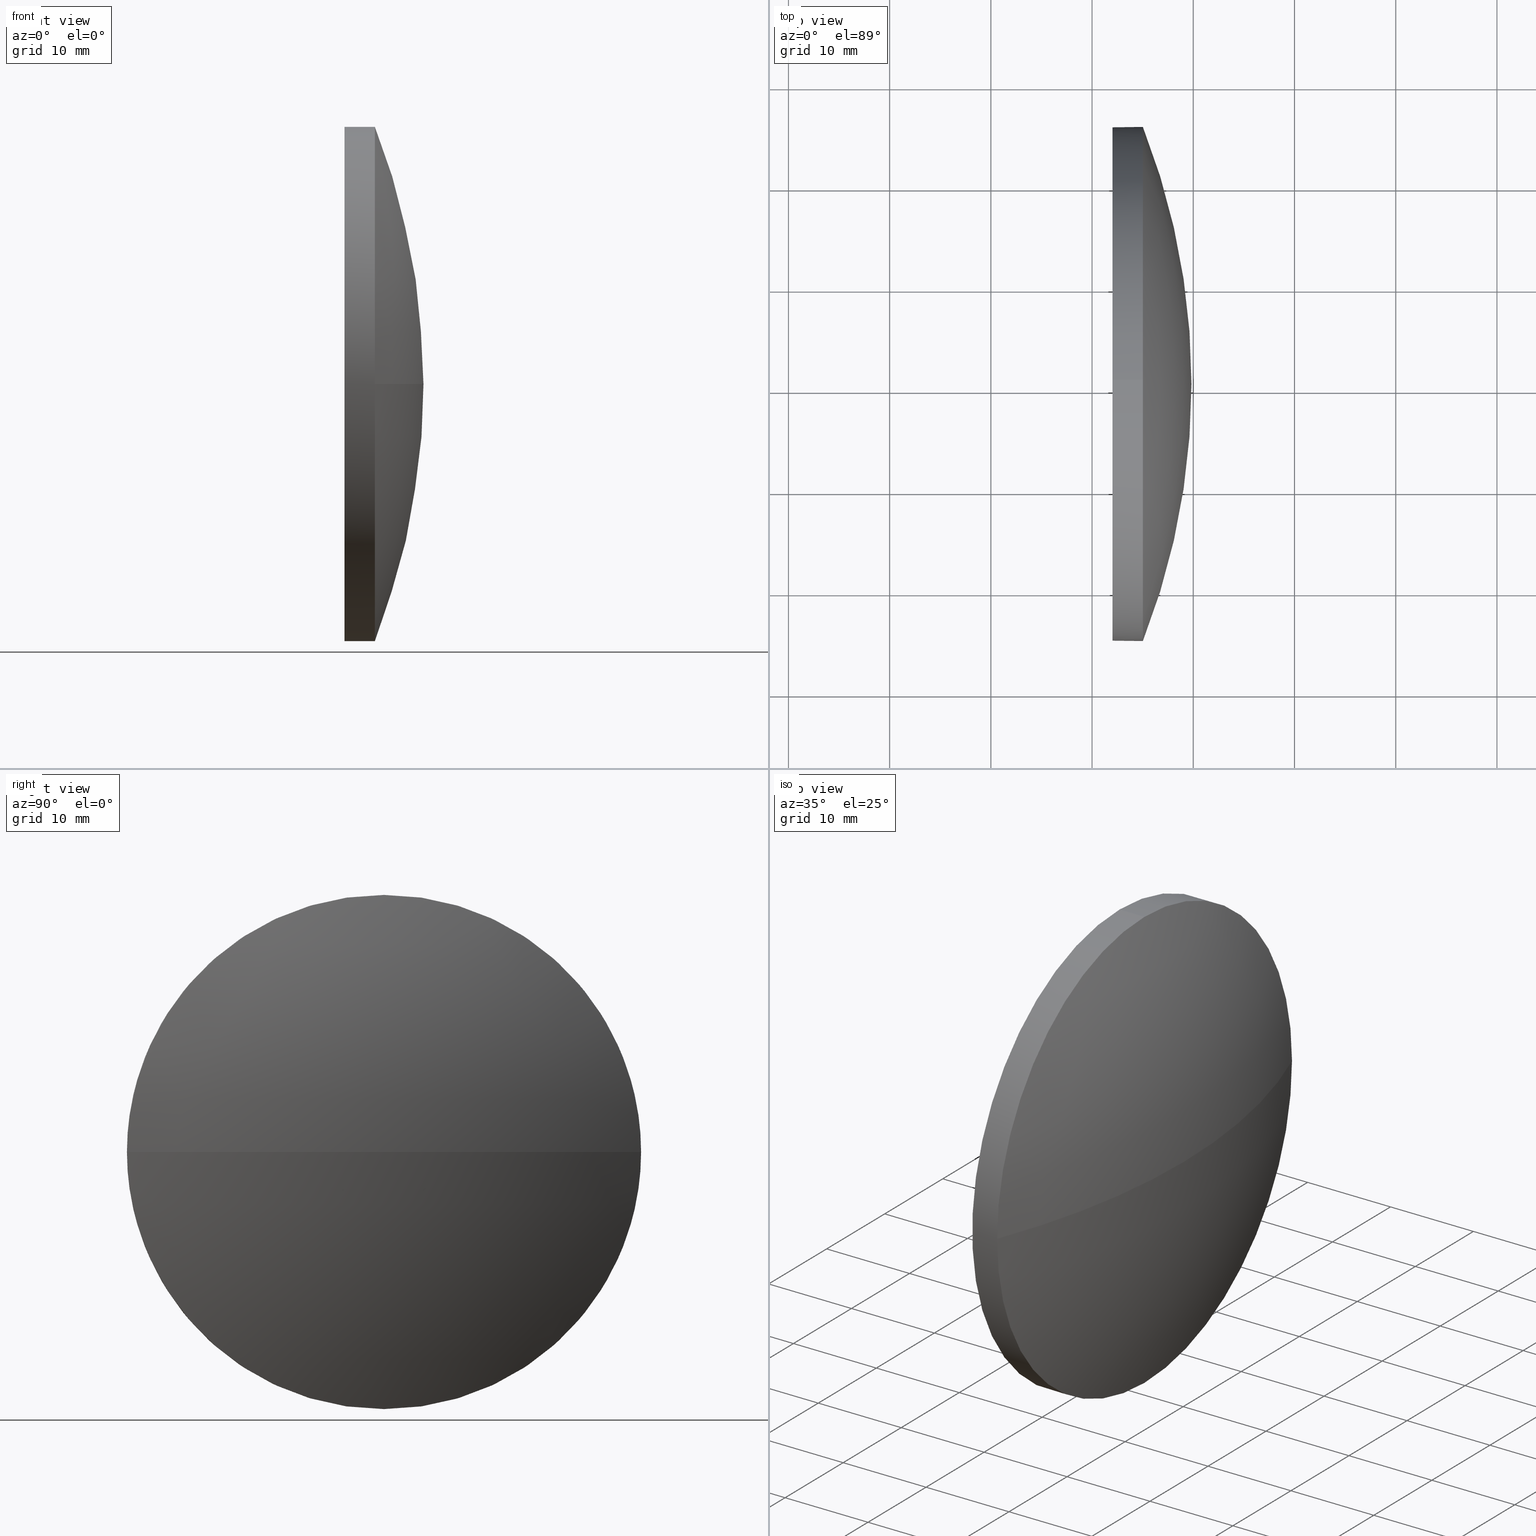
[diagram: canonical four-view strip — front | top / right | iso, engineering-drawing reading convention]
A machine part, canonical four-view strip (front | top / right | iso — engineering-drawing reading convention). The complete STEP part file that produces these views, byte-faithful:
ISO-10303-21;
HEADER;
FILE_DESCRIPTION (( 'STEP AP214' ),
    '1' );
FILE_NAME ('100387.STEP',
    '2019-06-05T01:40:58',
    ( '' ),
    ( '' ),
    'SwSTEP 2.0',
    'SolidWorks 2016',
    '' );
FILE_SCHEMA (( 'AUTOMOTIVE_DESIGN' ));
ENDSEC;

DATA;
#1 = FILL_AREA_STYLE_COLOUR ( '', #73 ) ;
#2 = VERTEX_POINT ( 'NONE', #66 ) ;
#3 = AXIS2_PLACEMENT_3D ( 'NONE', #95, #123, #60 ) ;
#4 = CARTESIAN_POINT ( 'NONE',  ( 0.0000000000000000000, 0.0000000000000000000, 0.0000000000000000000 ) ) ;
#5 = DIRECTION ( 'NONE',  ( 1.000000000000000000, 0.0000000000000000000, 0.0000000000000000000 ) ) ;
#6 = CARTESIAN_POINT ( 'NONE',  ( 220.3307464569769000, 130.4671098528243900, 0.0000000000000000000 ) ) ;
#7 = CARTESIAN_POINT ( 'NONE',  ( 235.0208200792423800, 130.4671098528243900, 0.0000000000000000000 ) ) ;
#8 = EDGE_LOOP ( 'NONE', ( #40, #80 ) ) ;
#9 = CYLINDRICAL_SURFACE ( 'NONE', #105, 25.40000000000000600 ) ;
#10 = DIRECTION ( 'NONE',  ( -1.000000000000000000, -0.0000000000000000000, -0.0000000000000000000 ) ) ;
#11 = VERTEX_POINT ( 'NONE', #132 ) ;
#12 = APPLICATION_PROTOCOL_DEFINITION ( 'draft international standard', 'automotive_design', 1998, #110 ) ;
#13 = COLOUR_RGB ( '',1.000000000000000000, 1.000000000000000000, 1.000000000000000000 ) ;
#14 =( NAMED_UNIT ( * ) PLANE_ANGLE_UNIT ( ) SI_UNIT ( $, .RADIAN. ) );
#15 = UNCERTAINTY_MEASURE_WITH_UNIT (LENGTH_MEASURE( 1.000000000000000100E-005 ), #34, 'distance_accuracy_value', 'NONE');
#16 = VERTEX_POINT ( 'NONE', #63 ) ;
#17 = VECTOR ( 'NONE', #120, 1000.000000000000000 ) ;
#18 = ORIENTED_EDGE ( 'NONE', *, *, #68, .T. ) ;
#19 = CIRCLE ( 'NONE', #182, 25.40000000000000600 ) ;
#20 = EDGE_CURVE ( 'NONE', #57, #2, #157, .T. ) ;
#21 = EDGE_CURVE ( 'NONE', #2, #57, #76, .T. ) ;
#22 = DIRECTION ( 'NONE',  ( 0.0000000000000000000, 1.000000000000000000, 0.0000000000000000000 ) ) ;
#23 = ORIENTED_EDGE ( 'NONE', *, *, #148, .T. ) ;
#24 = CARTESIAN_POINT ( 'NONE',  ( 235.0208200792423800, 130.4671098528243900, 0.0000000000000000000 ) ) ;
#25 = FILL_AREA_STYLE ('',( #125 ) ) ;
#26 = PRESENTATION_LAYER_ASSIGNMENT (  '', '', ( #146 ) ) ;
#27 = ORIENTED_EDGE ( 'NONE', *, *, #61, .F. ) ;
#28 = EDGE_LOOP ( 'NONE', ( #93, #18, #130, #159, #153 ) ) ;
#29 = EDGE_CURVE ( 'NONE', #16, #57, #113, .T. ) ;
#30 =( GEOMETRIC_REPRESENTATION_CONTEXT ( 3 ) GLOBAL_UNCERTAINTY_ASSIGNED_CONTEXT ( ( #47 ) ) GLOBAL_UNIT_ASSIGNED_CONTEXT ( ( #177, #41, #89 ) ) REPRESENTATION_CONTEXT ( 'NONE', 'WORKASPACE' ) );
#31 = DIRECTION ( 'NONE',  ( 1.000000000000000000, 0.0000000000000000000, 0.0000000000000000000 ) ) ;
#32 = CARTESIAN_POINT ( 'NONE',  ( 170.2166534125759400, 130.4671098528243900, 0.0000000000000000000 ) ) ;
#33 = DIRECTION ( 'NONE',  ( 0.0000000000000000000, 1.224646799147353200E-016, -1.000000000000000000 ) ) ;
#34 =( LENGTH_UNIT ( ) NAMED_UNIT ( * ) SI_UNIT ( .MILLI., .METRE. ) );
#35 = VECTOR ( 'NONE', #135, 1000.000000000000000 ) ;
#36 =( NAMED_UNIT ( * ) SI_UNIT ( $, .STERADIAN. ) SOLID_ANGLE_UNIT ( ) );
#37 = PRESENTATION_STYLE_ASSIGNMENT (( #103 ) ) ;
#38 = DIRECTION ( 'NONE',  ( -1.000000000000000000, -0.0000000000000000000, -0.0000000000000000000 ) ) ;
#39 = DIRECTION ( 'NONE',  ( -1.000000000000000000, -0.0000000000000000000, -0.0000000000000000000 ) ) ;
#40 = ORIENTED_EDGE ( 'NONE', *, *, #21, .T. ) ;
#41 =( NAMED_UNIT ( * ) PLANE_ANGLE_UNIT ( ) SI_UNIT ( $, .RADIAN. ) );
#42 = PRESENTATION_STYLE_ASSIGNMENT (( #126 ) ) ;
#43 = DIRECTION ( 'NONE',  ( -1.000000000000000000, -0.0000000000000000000, -0.0000000000000000000 ) ) ;
#44 = CARTESIAN_POINT ( 'NONE',  ( 232.0208200792423800, 130.4671098528243900, 0.0000000000000000000 ) ) ;
#45 = ORIENTED_EDGE ( 'NONE', *, *, #164, .T. ) ;
#46 = SPHERICAL_SURFACE ( 'NONE', #178, 69.60416666666644400 ) ;
#47 = UNCERTAINTY_MEASURE_WITH_UNIT (LENGTH_MEASURE( 1.000000000000000100E-005 ), #177, 'distance_accuracy_value', 'NONE');
#48 = ORIENTED_EDGE ( 'NONE', *, *, #29, .T. ) ;
#49 = CIRCLE ( 'NONE', #115, 69.60416666666644400 ) ;
#50 = SURFACE_SIDE_STYLE ('',( #124 ) ) ;
#51 = MECHANICAL_DESIGN_GEOMETRIC_PRESENTATION_REPRESENTATION (  '', ( #146 ), #30 ) ;
#52 = ADVANCED_FACE ( 'NONE', ( #86 ), #46, .T. ) ;
#53 = ADVANCED_FACE ( 'NONE', ( #160 ), #9, .T. ) ;
#54 = CARTESIAN_POINT ( 'NONE',  ( 239.8208200792423700, 130.4671098528243900, 0.0000000000000000000 ) ) ;
#55 = ORIENTED_EDGE ( 'NONE', *, *, #164, .F. ) ;
#56 = AXIS2_PLACEMENT_3D ( 'NONE', #6, #10, #108 ) ;
#57 = VERTEX_POINT ( 'NONE', #65 ) ;
#58 = PLANE ( 'NONE',  #129 ) ;
#59 = MANIFOLD_SOLID_BREP ( '��ת1', #104 ) ;
#60 = DIRECTION ( 'NONE',  ( 0.0000000000000000000, 0.0000000000000000000, 1.000000000000000000 ) ) ;
#61 = EDGE_CURVE ( 'NONE', #11, #116, #169, .T. ) ;
#62 = ORIENTED_EDGE ( 'NONE', *, *, #117, .F. ) ;
#63 = CARTESIAN_POINT ( 'NONE',  ( 235.0208200792423800, 130.4671098528243900, -25.40000000000000600 ) ) ;
#64 = PRODUCT ( '100387', '100387', '', ( #144 ) ) ;
#65 = CARTESIAN_POINT ( 'NONE',  ( 232.0208200792423800, 130.4671098528243900, -25.40000000000000600 ) ) ;
#66 = CARTESIAN_POINT ( 'NONE',  ( 232.0208200792423800, 130.4671098528243900, 25.40000000000000600 ) ) ;
#67 = PRODUCT_DEFINITION ( 'δ֪', '', #82, #90 ) ;
#68 = EDGE_CURVE ( 'NONE', #16, #11, #92, .T. ) ;
#69 = PRODUCT_RELATED_PRODUCT_CATEGORY ( 'part', '', ( #64 ) ) ;
#70 = DIRECTION ( 'NONE',  ( -1.000000000000000000, -0.0000000000000000000, -0.0000000000000000000 ) ) ;
#71 = DIRECTION ( 'NONE',  ( -0.0000000000000000000, 0.0000000000000000000, -1.000000000000000000 ) ) ;
#72 = EDGE_LOOP ( 'NONE', ( #62, #45, #83, #141 ) ) ;
#73 = COLOUR_RGB ( '',1.000000000000000000, 1.000000000000000000, 1.000000000000000000 ) ;
#74 = DIRECTION ( 'NONE',  ( 0.0000000000000000000, 1.000000000000000000, 1.224646799147353200E-016 ) ) ;
#75 = CARTESIAN_POINT ( 'NONE',  ( 170.2166534125759400, 130.4671098528243900, 0.0000000000000000000 ) ) ;
#76 = CIRCLE ( 'NONE', #174, 25.40000000000000600 ) ;
#77 =( NAMED_UNIT ( * ) PLANE_ANGLE_UNIT ( ) SI_UNIT ( $, .RADIAN. ) );
#78 = SHAPE_DEFINITION_REPRESENTATION ( #172, #183 ) ;
#79 = AXIS2_PLACEMENT_3D ( 'NONE', #7, #43, #152 ) ;
#80 = ORIENTED_EDGE ( 'NONE', *, *, #20, .T. ) ;
#81 = FACE_OUTER_BOUND ( 'NONE', #28, .T. ) ;
#82 = PRODUCT_DEFINITION_FORMATION_WITH_SPECIFIED_SOURCE ( '�κ�', '', #64, .NOT_KNOWN. ) ;
#83 = ORIENTED_EDGE ( 'NONE', *, *, #68, .F. ) ;
#84 = AXIS2_PLACEMENT_3D ( 'NONE', #75, #71, #143 ) ;
#85 = VERTEX_POINT ( 'NONE', #54 ) ;
#86 = FACE_OUTER_BOUND ( 'NONE', #72, .T. ) ;
#87 = CARTESIAN_POINT ( 'NONE',  ( 220.3307464569769000, 130.4671098528243900, 0.0000000000000000000 ) ) ;
#88 = EDGE_LOOP ( 'NONE', ( #55, #175, #171, #27 ) ) ;
#89 =( NAMED_UNIT ( * ) SI_UNIT ( $, .STERADIAN. ) SOLID_ANGLE_UNIT ( ) );
#90 = PRODUCT_DEFINITION_CONTEXT ( 'detailed design', #109, 'design' ) ;
#91 = STYLED_ITEM ( 'NONE', ( #42 ), #183 ) ;
#92 = CIRCLE ( 'NONE', #111, 25.40000000000000600 ) ;
#93 = ORIENTED_EDGE ( 'NONE', *, *, #29, .F. ) ;
#94 =( LENGTH_UNIT ( ) NAMED_UNIT ( * ) SI_UNIT ( .MILLI., .METRE. ) );
#95 = CARTESIAN_POINT ( 'NONE',  ( 235.0208200792423800, 130.4671098528243900, 0.0000000000000000000 ) ) ;
#96 = ADVANCED_FACE ( 'NONE', ( #131 ), #158, .T. ) ;
#97 =( NAMED_UNIT ( * ) SI_UNIT ( $, .STERADIAN. ) SOLID_ANGLE_UNIT ( ) );
#98 = AXIS2_PLACEMENT_3D ( 'NONE', #4, #128, #181 ) ;
#99 = VERTEX_POINT ( 'NONE', #150 ) ;
#100 = CARTESIAN_POINT ( 'NONE',  ( 232.0208200792423800, 130.4671098528243900, 0.0000000000000000000 ) ) ;
#101 = CARTESIAN_POINT ( 'NONE',  ( 232.0208200792423800, 130.4671098528243900, 0.0000000000000000000 ) ) ;
#102 = AXIS2_PLACEMENT_3D ( 'NONE', #100, #39, #114 ) ;
#103 = SURFACE_STYLE_USAGE ( .BOTH. , #137 ) ;
#104 = CLOSED_SHELL ( 'NONE', ( #53, #52, #96, #168, #154 ) ) ;
#105 = AXIS2_PLACEMENT_3D ( 'NONE', #87, #173, #185 ) ;
#106 = DIRECTION ( 'NONE',  ( -0.0000000000000000000, 0.0000000000000000000, 1.000000000000000000 ) ) ;
#107 = CARTESIAN_POINT ( 'NONE',  ( 170.2166534125759400, 130.4671098528243900, 0.0000000000000000000 ) ) ;
#108 = DIRECTION ( 'NONE',  ( 0.0000000000000000000, 0.0000000000000000000, 1.000000000000000000 ) ) ;
#109 = APPLICATION_CONTEXT ( 'automotive_design' ) ;
#110 = APPLICATION_CONTEXT ( 'automotive_design' ) ;
#111 = AXIS2_PLACEMENT_3D ( 'NONE', #24, #70, #166 ) ;
#112 = SURFACE_STYLE_FILL_AREA ( #161 ) ;
#113 = LINE ( 'NONE', #147, #35 ) ;
#114 = DIRECTION ( 'NONE',  ( 0.0000000000000000000, 0.0000000000000000000, 1.000000000000000000 ) ) ;
#115 = AXIS2_PLACEMENT_3D ( 'NONE', #32, #106, #5 ) ;
#116 = VERTEX_POINT ( 'NONE', #140 ) ;
#117 = EDGE_CURVE ( 'NONE', #85, #99, #49, .T. ) ;
#118 = CYLINDRICAL_SURFACE ( 'NONE', #56, 25.40000000000000600 ) ;
#119 = FACE_OUTER_BOUND ( 'NONE', #8, .T. ) ;
#120 = DIRECTION ( 'NONE',  ( -1.000000000000000000, -0.0000000000000000000, -0.0000000000000000000 ) ) ;
#121 = MECHANICAL_DESIGN_GEOMETRIC_PRESENTATION_REPRESENTATION (  '', ( #91 ), #145 ) ;
#122 = CARTESIAN_POINT ( 'NONE',  ( 235.0208200792423800, 130.4671098528243900, 0.0000000000000000000 ) ) ;
#123 = DIRECTION ( 'NONE',  ( -1.000000000000000000, -0.0000000000000000000, -0.0000000000000000000 ) ) ;
#124 = SURFACE_STYLE_FILL_AREA ( #25 ) ;
#125 = FILL_AREA_STYLE_COLOUR ( '', #13 ) ;
#126 = SURFACE_STYLE_USAGE ( .BOTH. , #50 ) ;
#127 = APPLICATION_PROTOCOL_DEFINITION ( 'draft international standard', 'automotive_design', 1998, #109 ) ;
#128 = DIRECTION ( 'NONE',  ( 0.0000000000000000000, 0.0000000000000000000, 1.000000000000000000 ) ) ;
#129 = AXIS2_PLACEMENT_3D ( 'NONE', #44, #31, #151 ) ;
#130 = ORIENTED_EDGE ( 'NONE', *, *, #61, .T. ) ;
#131 = FACE_OUTER_BOUND ( 'NONE', #88, .T. ) ;
#132 = CARTESIAN_POINT ( 'NONE',  ( 235.0208200792423600, 105.0671098528244200, -3.110602869834274900E-015 ) ) ;
#133 = AXIS2_PLACEMENT_3D ( 'NONE', #107, #33, #74 ) ;
#134 = ORIENTED_EDGE ( 'NONE', *, *, #167, .F. ) ;
#135 = DIRECTION ( 'NONE',  ( -1.000000000000000000, -0.0000000000000000000, -0.0000000000000000000 ) ) ;
#136 = CIRCLE ( 'NONE', #79, 25.40000000000000600 ) ;
#137 = SURFACE_SIDE_STYLE ('',( #112 ) ) ;
#138 = ORIENTED_EDGE ( 'NONE', *, *, #21, .F. ) ;
#139 = EDGE_CURVE ( 'NONE', #116, #99, #136, .T. ) ;
#140 = CARTESIAN_POINT ( 'NONE',  ( 235.0208200792423800, 130.4671098528243900, 25.40000000000000600 ) ) ;
#141 = ORIENTED_EDGE ( 'NONE', *, *, #148, .F. ) ;
#142 = DIRECTION ( 'NONE',  ( 0.0000000000000000000, 0.0000000000000000000, 1.000000000000000000 ) ) ;
#143 = DIRECTION ( 'NONE',  ( 0.0000000000000000000, 1.000000000000000000, 0.0000000000000000000 ) ) ;
#144 = PRODUCT_CONTEXT ( 'NONE', #110, 'mechanical' ) ;
#145 =( GEOMETRIC_REPRESENTATION_CONTEXT ( 3 ) GLOBAL_UNCERTAINTY_ASSIGNED_CONTEXT ( ( #15 ) ) GLOBAL_UNIT_ASSIGNED_CONTEXT ( ( #34, #77, #36 ) ) REPRESENTATION_CONTEXT ( 'NONE', 'WORKASPACE' ) );
#146 = STYLED_ITEM ( 'NONE', ( #37 ), #59 ) ;
#147 = CARTESIAN_POINT ( 'NONE',  ( 220.3307464569769000, 130.4671098528243900, -25.40000000000000600 ) ) ;
#148 = EDGE_CURVE ( 'NONE', #99, #16, #19, .T. ) ;
#149 = PRESENTATION_LAYER_ASSIGNMENT (  '', '', ( #91 ) ) ;
#150 = CARTESIAN_POINT ( 'NONE',  ( 235.0208200792423600, 155.8671098528243700, 0.0000000000000000000 ) ) ;
#151 = DIRECTION ( 'NONE',  ( 0.0000000000000000000, 0.0000000000000000000, -1.000000000000000000 ) ) ;
#152 = DIRECTION ( 'NONE',  ( 0.0000000000000000000, 0.0000000000000000000, 1.000000000000000000 ) ) ;
#153 = ORIENTED_EDGE ( 'NONE', *, *, #20, .F. ) ;
#154 = ADVANCED_FACE ( 'NONE', ( #119 ), #58, .F. ) ;
#155 =( GEOMETRIC_REPRESENTATION_CONTEXT ( 3 ) GLOBAL_UNCERTAINTY_ASSIGNED_CONTEXT ( ( #165 ) ) GLOBAL_UNIT_ASSIGNED_CONTEXT ( ( #94, #14, #97 ) ) REPRESENTATION_CONTEXT ( 'NONE', 'WORKASPACE' ) );
#156 = ORIENTED_EDGE ( 'NONE', *, *, #139, .T. ) ;
#157 = CIRCLE ( 'NONE', #102, 25.40000000000000600 ) ;
#158 = SPHERICAL_SURFACE ( 'NONE', #84, 69.60416666666644400 ) ;
#159 = ORIENTED_EDGE ( 'NONE', *, *, #167, .T. ) ;
#160 = FACE_OUTER_BOUND ( 'NONE', #162, .T. ) ;
#161 = FILL_AREA_STYLE ('',( #1 ) ) ;
#162 = EDGE_LOOP ( 'NONE', ( #23, #48, #138, #134, #156 ) ) ;
#163 = LINE ( 'NONE', #180, #17 ) ;
#164 = EDGE_CURVE ( 'NONE', #85, #11, #170, .T. ) ;
#165 = UNCERTAINTY_MEASURE_WITH_UNIT (LENGTH_MEASURE( 1.000000000000000100E-005 ), #94, 'distance_accuracy_value', 'NONE');
#166 = DIRECTION ( 'NONE',  ( 0.0000000000000000000, 0.0000000000000000000, 1.000000000000000000 ) ) ;
#167 = EDGE_CURVE ( 'NONE', #116, #2, #163, .T. ) ;
#168 = ADVANCED_FACE ( 'NONE', ( #81 ), #118, .T. ) ;
#169 = CIRCLE ( 'NONE', #3, 25.40000000000000600 ) ;
#170 = CIRCLE ( 'NONE', #133, 69.60416666666644400 ) ;
#171 = ORIENTED_EDGE ( 'NONE', *, *, #139, .F. ) ;
#172 = PRODUCT_DEFINITION_SHAPE ( 'NONE', 'NONE',  #67 ) ;
#173 = DIRECTION ( 'NONE',  ( -1.000000000000000000, -0.0000000000000000000, -0.0000000000000000000 ) ) ;
#174 = AXIS2_PLACEMENT_3D ( 'NONE', #101, #38, #176 ) ;
#175 = ORIENTED_EDGE ( 'NONE', *, *, #117, .T. ) ;
#176 = DIRECTION ( 'NONE',  ( 0.0000000000000000000, 0.0000000000000000000, 1.000000000000000000 ) ) ;
#177 =( LENGTH_UNIT ( ) NAMED_UNIT ( * ) SI_UNIT ( .MILLI., .METRE. ) );
#178 = AXIS2_PLACEMENT_3D ( 'NONE', #186, #184, #22 ) ;
#179 = DIRECTION ( 'NONE',  ( -1.000000000000000000, -0.0000000000000000000, -0.0000000000000000000 ) ) ;
#180 = CARTESIAN_POINT ( 'NONE',  ( 220.3307464569769000, 130.4671098528243900, 25.40000000000000600 ) ) ;
#181 = DIRECTION ( 'NONE',  ( 1.000000000000000000, 0.0000000000000000000, 0.0000000000000000000 ) ) ;
#182 = AXIS2_PLACEMENT_3D ( 'NONE', #122, #179, #142 ) ;
#183 = ADVANCED_BREP_SHAPE_REPRESENTATION ( '100387', ( #59, #98 ), #155 ) ;
#184 = DIRECTION ( 'NONE',  ( -0.0000000000000000000, 0.0000000000000000000, -1.000000000000000000 ) ) ;
#185 = DIRECTION ( 'NONE',  ( 0.0000000000000000000, 0.0000000000000000000, 1.000000000000000000 ) ) ;
#186 = CARTESIAN_POINT ( 'NONE',  ( 170.2166534125759400, 130.4671098528243900, 0.0000000000000000000 ) ) ;
ENDSEC;
END-ISO-10303-21;
